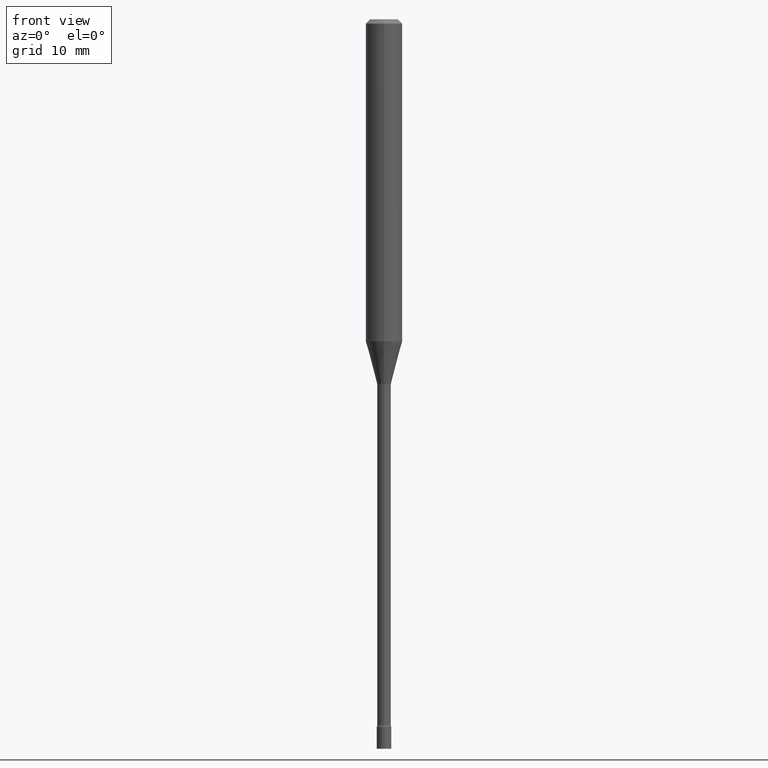
[diagram: clean part render]
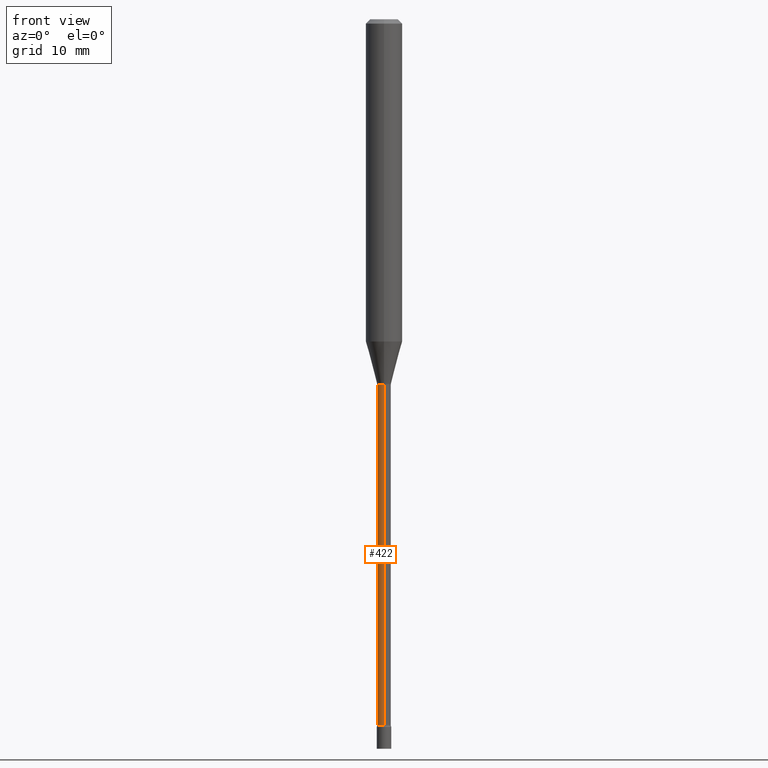
[diagram: same view with one face highlighted and labeled with its STEP entity id]
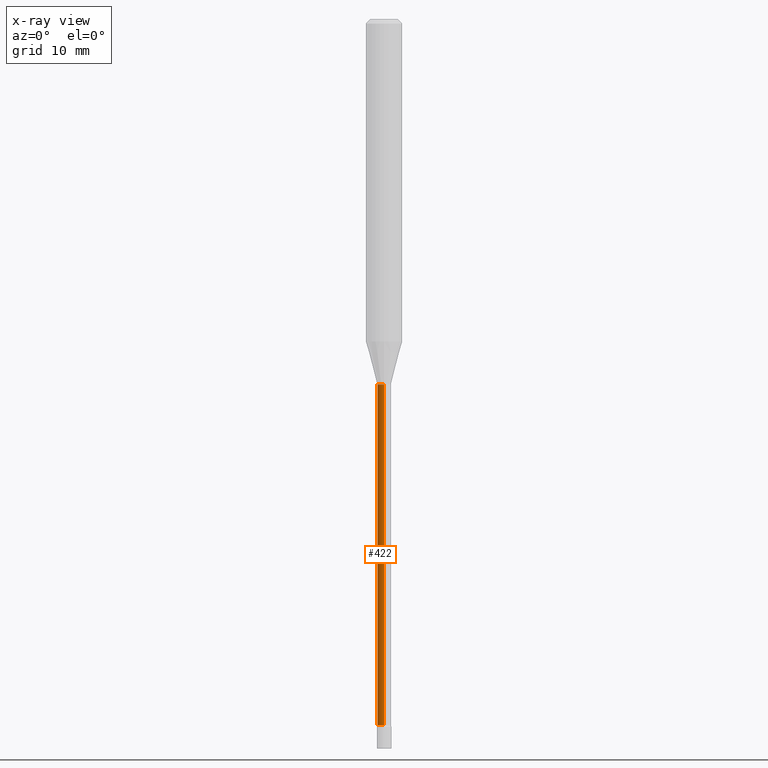
[diagram: x-ray of the same camera — body ghosted, the highlighted face saturated]
A machine part, front view. The second image highlights one B-rep face of the part: STEP entity #422.
The next image is the same camera in x-ray: the body ghosted, the highlighted face saturated — about 0% of this face is hidden behind the body in this view.
In plain terms, the highlighted cylindrical surface (edge-blend (fillet) strip) has radius 0.5969 mm, axis along (-0, 0, 1).
Its self-contained STEP definition (entity closure, byte-faithful):
#2 = DIRECTION ( 'NONE',  ( -2.445461215800332779E-29, 3.491492208706202500E-15, 1.000000000000000000 ) ) ;
#7 = CIRCLE ( 'NONE', #143, 0.02350000000000008332 ) ;
#27 = CARTESIAN_POINT ( 'NONE',  ( 0.000000000000000000, 0.000000000000000000, 0.000000000000000000 ) ) ;
#56 = EDGE_CURVE ( 'NONE', #484, #90, #337, .T. ) ;
#66 = LINE ( 'NONE', #243, #227 ) ;
#71 = AXIS2_PLACEMENT_3D ( 'NONE', #27, #430, #197 ) ;
#88 = CARTESIAN_POINT ( 'NONE',  ( 5.914254170850774673E-29, -8.444040013562677130E-15, -2.418461651584689509 ) ) ;
#90 = VERTEX_POINT ( 'NONE', #198 ) ;
#101 = ORIENTED_EDGE ( 'NONE', *, *, #56, .F. ) ;
#114 = DIRECTION ( 'NONE',  ( -2.445461215800332779E-29, 3.491492208706202500E-15, 1.000000000000000000 ) ) ;
#134 = ORIENTED_EDGE ( 'NONE', *, *, #448, .T. ) ;
#143 = AXIS2_PLACEMENT_3D ( 'NONE', #88, #2, #480 ) ;
#149 = CYLINDRICAL_SURFACE ( 'NONE', #71, 0.02350000000000004516 ) ;
#152 = DIRECTION ( 'NONE',  ( -2.445461215800333059E-29, 3.491492208706202106E-15, 1.000000000000000000 ) ) ;
#168 = VERTEX_POINT ( 'NONE', #351 ) ;
#197 = DIRECTION ( 'NONE',  ( -6.982962677686265133E-15, -1.000000000000000000, 3.491492208706202500E-15 ) ) ;
#198 = CARTESIAN_POINT ( 'NONE',  ( -1.640996229255966836E-16, -0.02350000000000437156, -1.251974787463811190 ) ) ;
#215 = VECTOR ( 'NONE', #311, 39.37007874015748143 ) ;
#225 = VERTEX_POINT ( 'NONE', #442 ) ;
#227 = VECTOR ( 'NONE', #152, 39.37007874015748143 ) ;
#239 = CARTESIAN_POINT ( 'NONE',  ( 3.061655785902614755E-29, -4.371260215926500486E-15, -1.251974787463811190 ) ) ;
#243 = CARTESIAN_POINT ( 'NONE',  ( 1.669775429036238399E-16, 0.02350000000000004516, -8.205006690459591386E-17 ) ) ;
#259 = ORIENTED_EDGE ( 'NONE', *, *, #510, .F. ) ;
#270 = DIRECTION ( 'NONE',  ( -6.982962677686265922E-15, -1.000000000000000000, 0.000000000000000000 ) ) ;
#271 = CARTESIAN_POINT ( 'NONE',  ( 1.669775429036830045E-16, 0.02349999999999563202, -1.251974787463811190 ) ) ;
#274 = EDGE_CURVE ( 'NONE', #168, #225, #7, .T. ) ;
#276 = CARTESIAN_POINT ( 'NONE',  ( -1.640996229256275477E-16, -0.02350000000000004516, 8.205006690459591386E-17 ) ) ;
#311 = DIRECTION ( 'NONE',  ( -2.445461215800333059E-29, 3.491492208706202106E-15, 1.000000000000000000 ) ) ;
#337 = CIRCLE ( 'NONE', #496, 0.02350000000000000352 ) ;
#345 = EDGE_LOOP ( 'NONE', ( #259, #377, #134, #101 ) ) ;
#351 = CARTESIAN_POINT ( 'NONE',  ( 1.723066134218837359E-16, 0.02349999999999163869, -2.418461651584689509 ) ) ;
#356 = LINE ( 'NONE', #276, #215 ) ;
#377 = ORIENTED_EDGE ( 'NONE', *, *, #274, .T. ) ;
#422 = ADVANCED_FACE ( 'NONE', ( #464 ), #149, .T. ) ;
#430 = DIRECTION ( 'NONE',  ( -2.445461215800332779E-29, 3.491492208706202500E-15, 1.000000000000000000 ) ) ;
#442 = CARTESIAN_POINT ( 'NONE',  ( -1.640996229255686790E-16, -0.02350000000000852796, -2.418461651584689509 ) ) ;
#448 = EDGE_CURVE ( 'NONE', #225, #90, #356, .T. ) ;
#464 = FACE_OUTER_BOUND ( 'NONE', #345, .T. ) ;
#480 = DIRECTION ( 'NONE',  ( -6.982962677686265133E-15, -1.000000000000000000, 0.000000000000000000 ) ) ;
#484 = VERTEX_POINT ( 'NONE', #271 ) ;
#496 = AXIS2_PLACEMENT_3D ( 'NONE', #239, #114, #270 ) ;
#510 = EDGE_CURVE ( 'NONE', #168, #484, #66, .T. ) ;